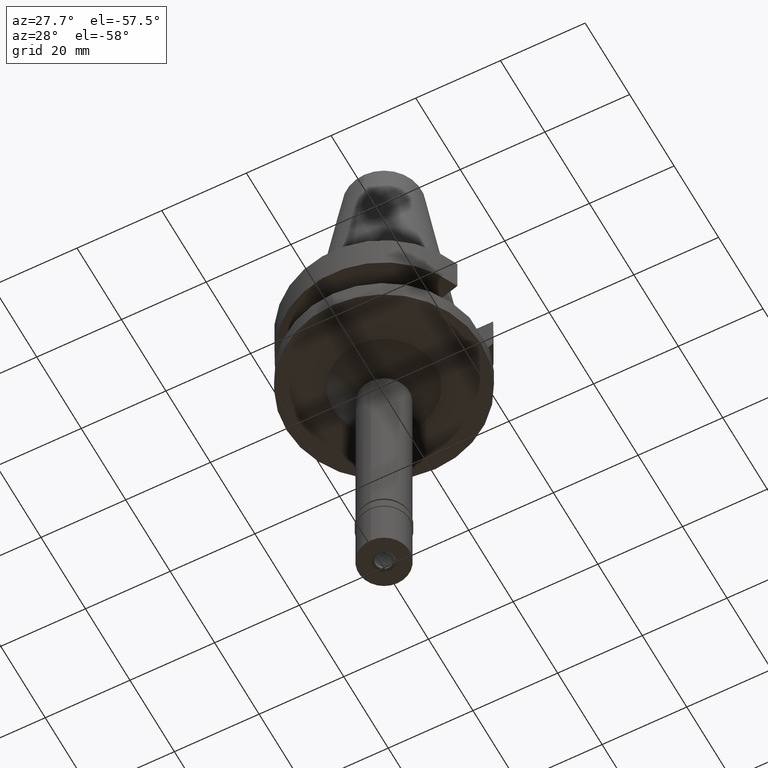
[diagram: clean part render]
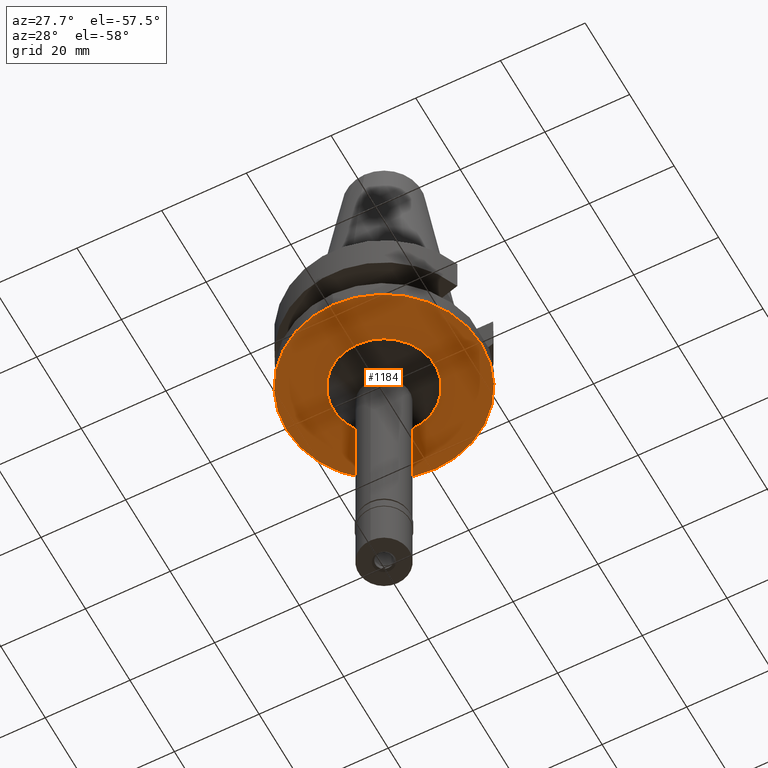
[diagram: same view with one face highlighted and labeled with its STEP entity id]
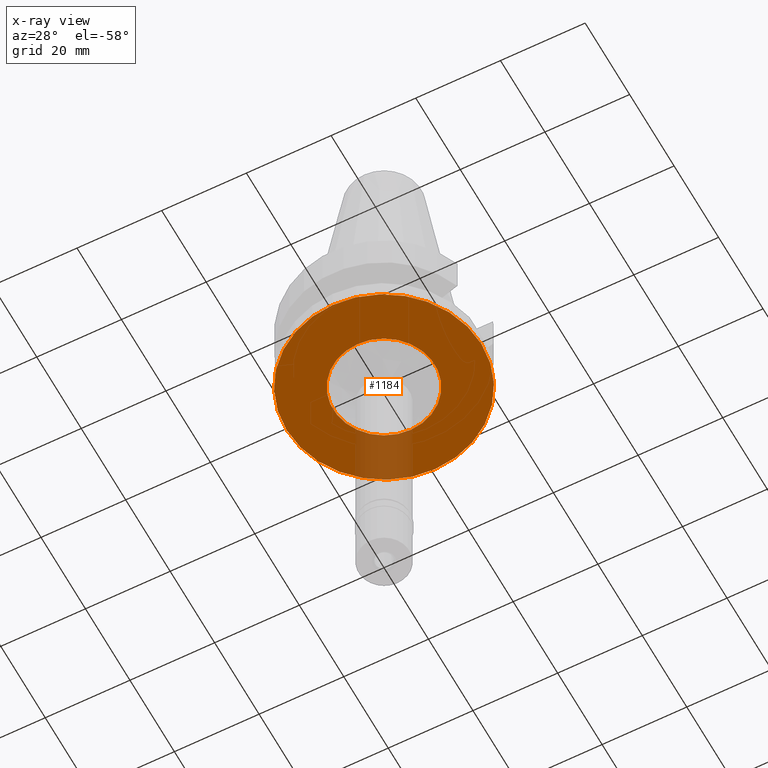
[diagram: x-ray of the same camera — body ghosted, the highlighted face saturated]
A machine part, auxiliary view. The second image highlights one B-rep face of the part: STEP entity #1184.
The next image is the same camera in x-ray: the body ghosted, the highlighted face saturated — about 11% of this face is hidden behind the body in this view.
In plain terms, the highlighted planar face has unit normal (0, 0, -1).
Its self-contained STEP definition (entity closure, byte-faithful):
#5 = DIRECTION ( 'NONE',  ( 0.0000000000000000000, 0.0000000000000000000, -1.000000000000000000 ) ) ;
#30 = CIRCLE ( 'NONE', #257, 12.00179173278999833 ) ;
#46 = ORIENTED_EDGE ( 'NONE', *, *, #1921, .F. ) ;
#84 = CIRCLE ( 'NONE', #2631, 23.00179173279000011 ) ;
#124 = AXIS2_PLACEMENT_3D ( 'NONE', #1146, #2679, #650 ) ;
#219 = CARTESIAN_POINT ( 'NONE',  ( 0.0000000000000000000, 0.0000000000000000000, -22.00000000000000000 ) ) ;
#257 = AXIS2_PLACEMENT_3D ( 'NONE', #1833, #939, #969 ) ;
#281 = EDGE_LOOP ( 'NONE', ( #1024, #46 ) ) ;
#336 = VERTEX_POINT ( 'NONE', #931 ) ;
#339 = ORIENTED_EDGE ( 'NONE', *, *, #926, .F. ) ;
#453 = VERTEX_POINT ( 'NONE', #2749 ) ;
#618 = FACE_OUTER_BOUND ( 'NONE', #281, .T. ) ;
#650 = DIRECTION ( 'NONE',  ( 0.0000000000000000000, -1.000000000000000000, 0.0000000000000000000 ) ) ;
#926 = EDGE_CURVE ( 'NONE', #453, #2407, #30, .T. ) ;
#930 = DIRECTION ( 'NONE',  ( 0.0000000000000000000, 0.0000000000000000000, 1.000000000000000000 ) ) ;
#931 = CARTESIAN_POINT ( 'NONE',  ( 0.0000000000000000000, 23.00179173279000011, -22.00000000000000000 ) ) ;
#939 = DIRECTION ( 'NONE',  ( 0.0000000000000000000, 0.0000000000000000000, -1.000000000000000000 ) ) ;
#969 = DIRECTION ( 'NONE',  ( 0.0000000000000000000, 1.000000000000000000, 0.0000000000000000000 ) ) ;
#1024 = ORIENTED_EDGE ( 'NONE', *, *, #1698, .F. ) ;
#1062 = AXIS2_PLACEMENT_3D ( 'NONE', #1577, #1988, #2034 ) ;
#1083 = PLANE ( 'NONE',  #124 ) ;
#1115 = EDGE_LOOP ( 'NONE', ( #339, #1273 ) ) ;
#1146 = CARTESIAN_POINT ( 'NONE',  ( 0.0000000000000000000, 0.0000000000000000000, -22.00000000000000000 ) ) ;
#1184 = ADVANCED_FACE ( 'NONE', ( #618, #1308 ), #1083, .T. ) ;
#1273 = ORIENTED_EDGE ( 'NONE', *, *, #2750, .F. ) ;
#1308 = FACE_BOUND ( 'NONE', #1115, .T. ) ;
#1372 = CARTESIAN_POINT ( 'NONE',  ( 0.0000000000000000000, -12.00179173278999833, -22.00000000000000000 ) ) ;
#1543 = VERTEX_POINT ( 'NONE', #1953 ) ;
#1577 = CARTESIAN_POINT ( 'NONE',  ( 0.0000000000000000000, 1.899672114836999856E-14, -22.00000000000000000 ) ) ;
#1698 = EDGE_CURVE ( 'NONE', #336, #1543, #2189, .T. ) ;
#1833 = CARTESIAN_POINT ( 'NONE',  ( 0.0000000000000000000, 0.0000000000000000000, -22.00000000000000000 ) ) ;
#1921 = EDGE_CURVE ( 'NONE', #1543, #336, #84, .T. ) ;
#1953 = CARTESIAN_POINT ( 'NONE',  ( 0.0000000000000000000, -23.00179173279000011, -22.00000000000000000 ) ) ;
#1988 = DIRECTION ( 'NONE',  ( 0.0000000000000000000, 0.0000000000000000000, 1.000000000000000000 ) ) ;
#2034 = DIRECTION ( 'NONE',  ( 0.0000000000000000000, 1.000000000000000000, 0.0000000000000000000 ) ) ;
#2089 = CARTESIAN_POINT ( 'NONE',  ( 0.0000000000000000000, 1.899672114836999856E-14, -22.00000000000000000 ) ) ;
#2189 = CIRCLE ( 'NONE', #1062, 23.00179173279000011 ) ;
#2225 = CIRCLE ( 'NONE', #2356, 12.00179173278999833 ) ;
#2292 = DIRECTION ( 'NONE',  ( 0.0000000000000000000, -1.000000000000000000, 0.0000000000000000000 ) ) ;
#2356 = AXIS2_PLACEMENT_3D ( 'NONE', #219, #5, #2436 ) ;
#2407 = VERTEX_POINT ( 'NONE', #1372 ) ;
#2436 = DIRECTION ( 'NONE',  ( 0.0000000000000000000, -1.000000000000000000, 0.0000000000000000000 ) ) ;
#2631 = AXIS2_PLACEMENT_3D ( 'NONE', #2089, #930, #2292 ) ;
#2679 = DIRECTION ( 'NONE',  ( 0.0000000000000000000, 0.0000000000000000000, -1.000000000000000000 ) ) ;
#2749 = CARTESIAN_POINT ( 'NONE',  ( 0.0000000000000000000, 12.00179173278999833, -22.00000000000000000 ) ) ;
#2750 = EDGE_CURVE ( 'NONE', #2407, #453, #2225, .T. ) ;